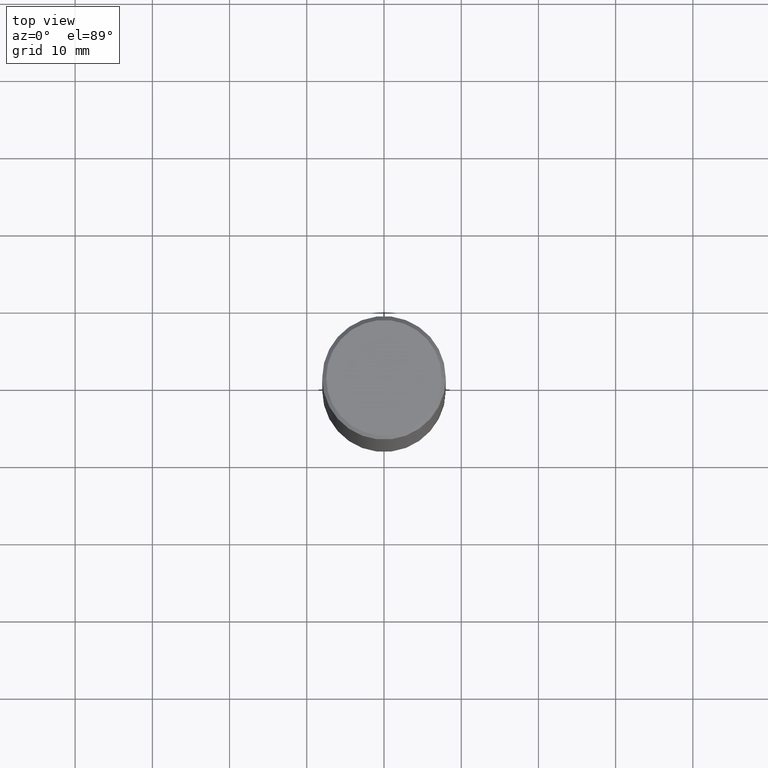
[diagram: clean part render]
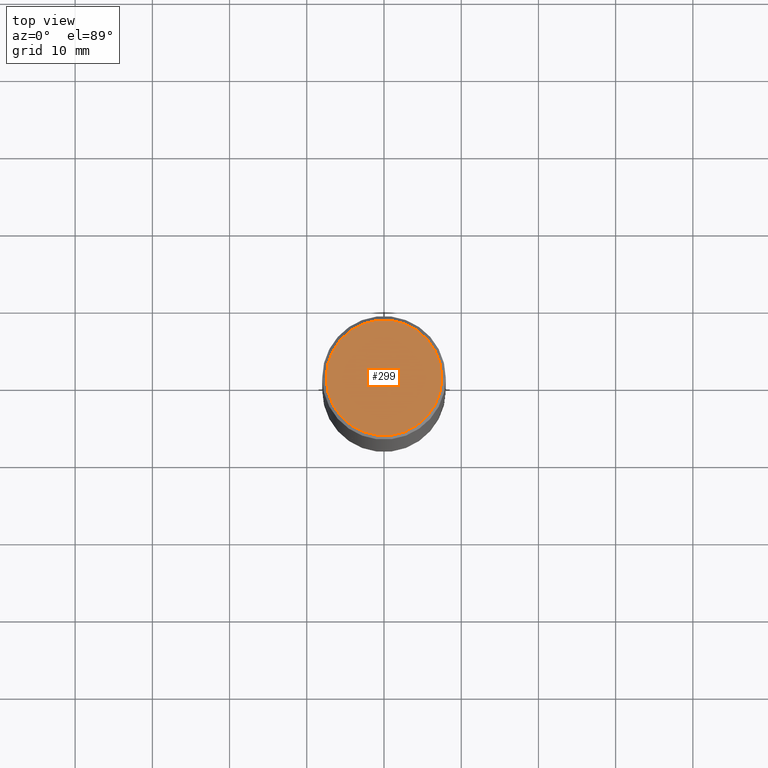
[diagram: same view with one face highlighted and labeled with its STEP entity id]
A machine part, top view. The second image highlights one B-rep face of the part: STEP entity #299.
In plain terms, the highlighted planar face has unit normal (0, -0, -1).
Its self-contained STEP definition (entity closure, byte-faithful):
#24 = AXIS2_PLACEMENT_3D ( 'NONE', #154, #350, #288 ) ;
#38 = ORIENTED_EDGE ( 'NONE', *, *, #359, .T. ) ;
#47 = DIRECTION ( 'NONE',  ( -2.445468806185136597E-29, 3.491481338843145583E-15, 1.000000000000000000 ) ) ;
#57 = ORIENTED_EDGE ( 'NONE', *, *, #165, .T. ) ;
#109 = PLANE ( 'NONE',  #355 ) ;
#132 = DIRECTION ( 'NONE',  ( -1.000000000000000000, 6.982962677686265922E-15, -4.876176775795935793E-29 ) ) ;
#137 = CARTESIAN_POINT ( 'NONE',  ( -0.2949499999999997124, 2.094539655171993740E-15, 4.268512490085885145E-18 ) ) ;
#154 = CARTESIAN_POINT ( 'NONE',  ( -1.043851414335219820E-46, 1.490343170380447200E-32, 4.268512490100411279E-18 ) ) ;
#161 = CARTESIAN_POINT ( 'NONE',  ( 2.059624841783562091E-15, 0.2949499999999997124, -1.027678164646734579E-15 ) ) ;
#162 = DIRECTION ( 'NONE',  ( 1.000000000000000000, -6.982962677686267499E-15, 4.876053491004739391E-29 ) ) ;
#165 = EDGE_CURVE ( 'NONE', #247, #303, #218, .T. ) ;
#216 = FACE_OUTER_BOUND ( 'NONE', #228, .T. ) ;
#218 = CIRCLE ( 'NONE', #24, 0.2949499999999997124 ) ;
#221 = CARTESIAN_POINT ( 'NONE',  ( 0.2949499999999997124, -2.127023677808858103E-15, 4.268512490115050658E-18 ) ) ;
#228 = EDGE_LOOP ( 'NONE', ( #57, #38 ) ) ;
#239 = CIRCLE ( 'NONE', #286, 0.2949499999999997124 ) ;
#247 = VERTEX_POINT ( 'NONE', #137 ) ;
#269 = CARTESIAN_POINT ( 'NONE',  ( -1.043851414335219820E-46, 1.490343170380447200E-32, 4.268512490100411279E-18 ) ) ;
#286 = AXIS2_PLACEMENT_3D ( 'NONE', #269, #47, #162 ) ;
#288 = DIRECTION ( 'NONE',  ( 1.000000000000000000, -6.982962677686267499E-15, 4.876053491004739391E-29 ) ) ;
#299 = ADVANCED_FACE ( 'NONE', ( #216 ), #109, .F. ) ;
#303 = VERTEX_POINT ( 'NONE', #221 ) ;
#330 = DIRECTION ( 'NONE',  ( 2.438088387897960049E-29, -3.491481338843145188E-15, -1.000000000000000000 ) ) ;
#350 = DIRECTION ( 'NONE',  ( -2.445468806185136597E-29, 3.491481338843145583E-15, 1.000000000000000000 ) ) ;
#355 = AXIS2_PLACEMENT_3D ( 'NONE', #161, #330, #132 ) ;
#359 = EDGE_CURVE ( 'NONE', #303, #247, #239, .T. ) ;